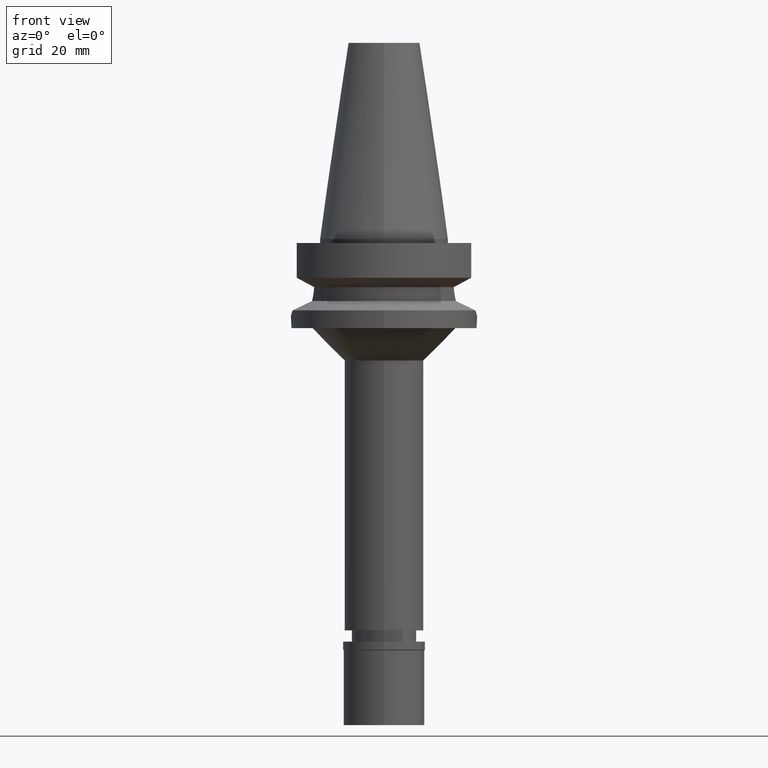
[diagram: clean part render]
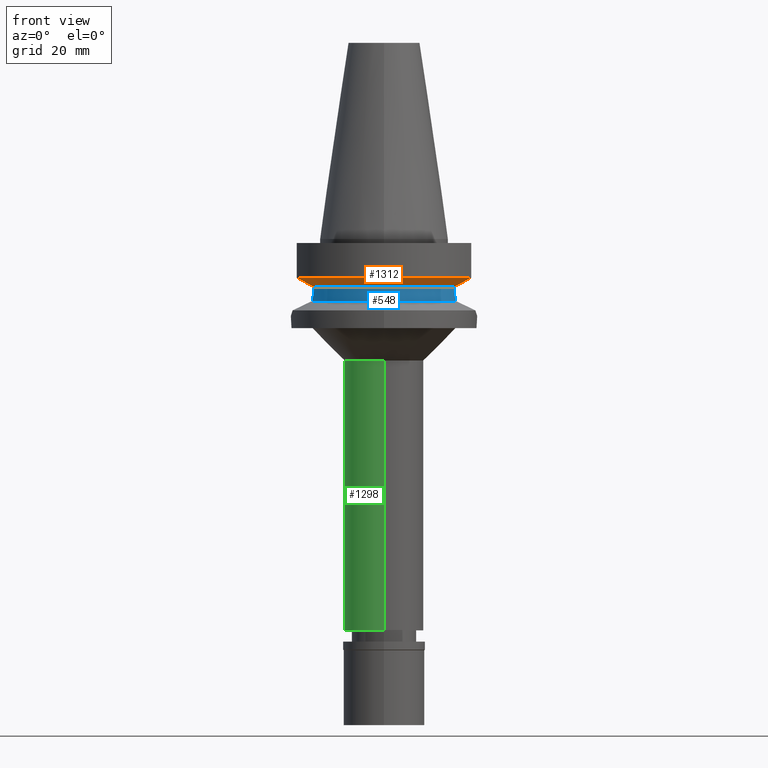
[diagram: same view with three faces highlighted in distinct colors, each labeled with its STEP entity id]
A machine part, front view with three faces highlighted in distinct colors.
Their STEP definitions:

[orange] entity #1312 — the highlighted conical surface has half-angle 60 deg.
#50 = EDGE_CURVE ( 'NONE', #2280, #2189, #983, .T. ) ;
#117 = B_SPLINE_CURVE_WITH_KNOTS ( 'NONE', 3,
 ( #2998, #1815, #2776, #1625 ),
 .UNSPECIFIED., .F., .F.,
 ( 4, 4 ),
 ( 0.0000000000000000000, 1.000000000000000000 ),
 .UNSPECIFIED. ) ;
#128 = AXIS2_PLACEMENT_3D ( 'NONE', #1120, #1073, #2082 ) ;
#224 = CARTESIAN_POINT ( 'NONE',  ( 19.78176446227738339, -8.050001299918164932, -10.51717305795229151 ) ) ;
#319 = VERTEX_POINT ( 'NONE', #3050 ) ;
#349 = EDGE_CURVE ( 'NONE', #2189, #319, #2213, .T. ) ;
#366 = AXIS2_PLACEMENT_3D ( 'NONE', #2172, #709, #2872 ) ;
#375 = FACE_OUTER_BOUND ( 'NONE', #1542, .T. ) ;
#697 = VERTEX_POINT ( 'NONE', #2665 ) ;
#709 = DIRECTION ( 'NONE',  ( 0.0000000000000000000, 0.0000000000000000000, -1.000000000000000000 ) ) ;
#721 = EDGE_CURVE ( 'NONE', #862, #697, #117, .T. ) ;
#770 = CARTESIAN_POINT ( 'NONE',  ( 17.23531135313999840, -7.996501749111999402, -11.87660739352999961 ) ) ;
#783 = CARTESIAN_POINT ( 'NONE',  ( -21.54524325238000060, -8.049999577366000025, -9.567211146628999074 ) ) ;
#824 = CARTESIAN_POINT ( 'NONE',  ( 17.72682660578003322, -8.027186146920309184, -11.61172867019492472 ) ) ;
#862 = VERTEX_POINT ( 'NONE', #783 ) ;
#983 = B_SPLINE_CURVE_WITH_KNOTS ( 'NONE', 3,
 ( #1798, #2973, #824, #2744 ),
 .UNSPECIFIED., .F., .F.,
 ( 4, 4 ),
 ( 0.0000000000000000000, 1.000000000000000000 ),
 .UNSPECIFIED. ) ;
#1021 = DIRECTION ( 'NONE',  ( 0.0000000000000000000, 0.0000000000000000000, 1.000000000000000000 ) ) ;
#1073 = DIRECTION ( 'NONE',  ( 0.0000000000000000000, 0.0000000000000000000, 1.000000000000000000 ) ) ;
#1120 = CARTESIAN_POINT ( 'NONE',  ( 0.0000000000000000000, 1.093341284896999988E-14, -10.72190890808999875 ) ) ;
#1170 = CARTESIAN_POINT ( 'NONE',  ( 21.54524309446999908, -8.050000000002000888, -9.567208369710998639 ) ) ;
#1211 = EDGE_CURVE ( 'NONE', #862, #1222, #2970, .T. ) ;
#1222 = VERTEX_POINT ( 'NONE', #2419 ) ;
#1312 = ADVANCED_FACE ( 'NONE', ( #375 ), #1969, .T. ) ;
#1344 = CARTESIAN_POINT ( 'NONE',  ( 18.96736186693999926, -8.050001277873001015, -10.94999977540000025 ) ) ;
#1507 = DIRECTION ( 'NONE',  ( 0.0000000000000000000, -1.000000000000000000, 0.0000000000000000000 ) ) ;
#1542 = EDGE_LOOP ( 'NONE', ( #2110, #2763, #2507, #2714, #2401, #1588 ) ) ;
#1560 = CARTESIAN_POINT ( 'NONE',  ( -18.96738966519999892, -8.049994318072998922, -10.95000099924999937 ) ) ;
#1567 = B_SPLINE_CURVE_WITH_KNOTS ( 'NONE', 3,
 ( #2162, #224, #2865, #1170 ),
 .UNSPECIFIED., .F., .F.,
 ( 4, 4 ),
 ( 0.0000000000000000000, 1.000000000000000000 ),
 .UNSPECIFIED. ) ;
#1588 = ORIENTED_EDGE ( 'NONE', *, *, #721, .T. ) ;
#1625 = CARTESIAN_POINT ( 'NONE',  ( -18.96738966519999892, -8.049994318072998922, -10.95000099924999937 ) ) ;
#1626 = AXIS2_PLACEMENT_3D ( 'NONE', #2941, #1021, #1507 ) ;
#1785 = EDGE_CURVE ( 'NONE', #2280, #1222, #1567, .T. ) ;
#1798 = CARTESIAN_POINT ( 'NONE',  ( 18.96736186693999926, -8.050001277873001015, -10.94999977540000025 ) ) ;
#1815 = CARTESIAN_POINT ( 'NONE',  ( -20.64098922449849383, -8.049999155425599184, -10.05625859809538980 ) ) ;
#1969 = CONICAL_SURFACE ( 'NONE', #128, 21.00000000000000000, 1.047197551196400456 ) ;
#1993 = B_SPLINE_CURVE_WITH_KNOTS ( 'NONE', 3,
 ( #2759, #2514, #2966, #1560 ),
 .UNSPECIFIED., .F., .F.,
 ( 4, 4 ),
 ( 0.0000000000000000000, 1.000000000000000000 ),
 .UNSPECIFIED. ) ;
#2082 = DIRECTION ( 'NONE',  ( 0.0000000000000000000, 1.000000000000000000, 0.0000000000000000000 ) ) ;
#2110 = ORIENTED_EDGE ( 'NONE', *, *, #2707, .F. ) ;
#2162 = CARTESIAN_POINT ( 'NONE',  ( 18.96736186693999926, -8.050001277873001015, -10.94999977540000025 ) ) ;
#2172 = CARTESIAN_POINT ( 'NONE',  ( 0.0000000000000000000, 1.093341284896999988E-14, -11.87660944646999894 ) ) ;
#2189 = VERTEX_POINT ( 'NONE', #770 ) ;
#2213 = CIRCLE ( 'NONE', #366, 19.00000000000000000 ) ;
#2280 = VERTEX_POINT ( 'NONE', #1344 ) ;
#2401 = ORIENTED_EDGE ( 'NONE', *, *, #1211, .F. ) ;
#2419 = CARTESIAN_POINT ( 'NONE',  ( 21.54524309446999908, -8.050000000002000888, -9.567208369710998639 ) ) ;
#2507 = ORIENTED_EDGE ( 'NONE', *, *, #50, .F. ) ;
#2514 = CARTESIAN_POINT ( 'NONE',  ( -17.72598984664393029, -8.027133614840121112, -11.61218199031924669 ) ) ;
#2665 = CARTESIAN_POINT ( 'NONE',  ( -18.96738966519999892, -8.049994318072998922, -10.95000099924999937 ) ) ;
#2707 = EDGE_CURVE ( 'NONE', #319, #697, #1993, .T. ) ;
#2714 = ORIENTED_EDGE ( 'NONE', *, *, #1785, .T. ) ;
#2744 = CARTESIAN_POINT ( 'NONE',  ( 17.23531135313999840, -7.996501749111999402, -11.87660739352999961 ) ) ;
#2759 = CARTESIAN_POINT ( 'NONE',  ( -17.23531622871000124, -7.996491146968002006, -11.87660607765999998 ) ) ;
#2763 = ORIENTED_EDGE ( 'NONE', *, *, #349, .F. ) ;
#2776 = CARTESIAN_POINT ( 'NONE',  ( -19.78174442233868291, -8.049991903459016385, -10.51718567402809690 ) ) ;
#2865 = CARTESIAN_POINT ( 'NONE',  ( 20.64101735201231591, -8.050004185258069711, -10.05624233374762966 ) ) ;
#2872 = DIRECTION ( 'NONE',  ( 0.0000000000000000000, -1.000000000000000000, 0.0000000000000000000 ) ) ;
#2941 = CARTESIAN_POINT ( 'NONE',  ( 0.0000000000000000000, 1.093341284896999988E-14, -9.567208369710998639 ) ) ;
#2966 = CARTESIAN_POINT ( 'NONE',  ( -18.30334765880726167, -8.049999956192328554, -11.30291652904217514 ) ) ;
#2970 = CIRCLE ( 'NONE', #1626, 23.00000000000000000 ) ;
#2973 = CARTESIAN_POINT ( 'NONE',  ( 18.30417677704669899, -8.050000009833846448, -11.30245973841521945 ) ) ;
#2998 = CARTESIAN_POINT ( 'NONE',  ( -21.54524325238000060, -8.049999577366000025, -9.567211146628999074 ) ) ;
#3050 = CARTESIAN_POINT ( 'NONE',  ( -17.23531622871000124, -7.996491146968002006, -11.87660607765999998 ) ) ;

[blue] entity #548 — the highlighted cylindrical surface (partial cylindrical patch) has radius 19 mm, axis along (0, 0, -1).
#41 = CARTESIAN_POINT ( 'NONE',  ( 0.0000000000000000000, 1.915592523225999865E-14, 56.41999999999999460 ) ) ;
#145 = CARTESIAN_POINT ( 'NONE',  ( 17.25079842015505704, -7.963112712671637006, -12.16467410600589893 ) ) ;
#170 = CARTESIAN_POINT ( 'NONE',  ( -17.47454530901779179, -7.459745912388544120, -13.97656768012266326 ) ) ;
#179 = CARTESIAN_POINT ( 'NONE',  ( 17.40050649189846510, -7.630573670530728769, -13.51506551006701429 ) ) ;
#237 = ORIENTED_EDGE ( 'NONE', *, *, #349, .T. ) ;
#319 = VERTEX_POINT ( 'NONE', #3050 ) ;
#349 = EDGE_CURVE ( 'NONE', #2189, #319, #2213, .T. ) ;
#366 = AXIS2_PLACEMENT_3D ( 'NONE', #2172, #709, #2872 ) ;
#397 = DIRECTION ( 'NONE',  ( 0.0000000000000000000, -1.000000000000000000, 0.0000000000000000000 ) ) ;
#428 = CARTESIAN_POINT ( 'NONE',  ( 17.41740877569946377, -7.591869531162124041, -13.62695997435001338 ) ) ;
#465 = CARTESIAN_POINT ( 'NONE',  ( -17.42912000654915516, -7.564956682215965955, -13.70217383710685688 ) ) ;
#466 = DIRECTION ( 'NONE',  ( 0.0000000000000000000, 0.0000000000000000000, -1.000000000000000000 ) ) ;
#548 = ADVANCED_FACE ( 'NONE', ( #2184 ), #1403, .T. ) ;
#642 = VERTEX_POINT ( 'NONE', #2199 ) ;
#662 = CARTESIAN_POINT ( 'NONE',  ( 17.32020050329957783, -7.811458914743172777, -12.90105448524576204 ) ) ;
#709 = DIRECTION ( 'NONE',  ( 0.0000000000000000000, 0.0000000000000000000, -1.000000000000000000 ) ) ;
#770 = CARTESIAN_POINT ( 'NONE',  ( 17.23531135313999840, -7.996501749111999402, -11.87660739352999961 ) ) ;
#779 = ORIENTED_EDGE ( 'NONE', *, *, #1607, .F. ) ;
#861 = CARTESIAN_POINT ( 'NONE',  ( 17.61323061601331474, -7.137107428168432577, -14.73815501054285981 ) ) ;
#880 = CARTESIAN_POINT ( 'NONE',  ( -17.51073134979980495, -7.374835522280835498, -14.18047752172160081 ) ) ;
#887 = CARTESIAN_POINT ( 'NONE',  ( 17.23531135313999840, -7.996501749111999402, -11.87660739352999961 ) ) ;
#908 = CARTESIAN_POINT ( 'NONE',  ( -17.32791029621212786, -7.797415213321160721, -13.04847605008973233 ) ) ;
#982 = DIRECTION ( 'NONE',  ( 0.0000000000000000000, -1.000000000000000000, 0.0000000000000000000 ) ) ;
#1110 = CARTESIAN_POINT ( 'NONE',  ( 17.41455302328521171, -7.598419946123429192, -13.60830999035355227 ) ) ;
#1181 = B_SPLINE_CURVE_WITH_KNOTS ( 'NONE', 3,
 ( #887, #145, #1557, #662, #1332, #1366, #2561, #179, #2739, #1110, #428, #2058, #3015, #861, #2257 ),
 .UNSPECIFIED., .F., .F.,
 ( 4, 2, 2, 1, 1, 1, 2, 2, 4 ),
 ( 0.0000000000000000000, 0.2500000000000031641, 0.3750000000000040523, 0.4375000000000045519, 0.4687500000000046074, 0.4843750000000047740, 0.4921875000000041633, 0.5000000000000035527, 1.000000000000000000 ),
 .UNSPECIFIED. ) ;
#1234 = ORIENTED_EDGE ( 'NONE', *, *, #1681, .F. ) ;
#1332 = CARTESIAN_POINT ( 'NONE',  ( 17.33753291668424623, -7.772931439716159296, -13.04953900761626429 ) ) ;
#1366 = CARTESIAN_POINT ( 'NONE',  ( 17.36640820072439340, -7.707990843834751082, -13.27279658044289690 ) ) ;
#1386 = CARTESIAN_POINT ( 'NONE',  ( 0.0000000000000000000, 1.022848384030000006E-14, -15.32339055352999857 ) ) ;
#1403 = CYLINDRICAL_SURFACE ( 'NONE', #2015, 19.00000000000000000 ) ;
#1421 = CARTESIAN_POINT ( 'NONE',  ( -17.42272207964819231, -7.579666851679187189, -13.66131438038960866 ) ) ;
#1557 = CARTESIAN_POINT ( 'NONE',  ( 17.27395659107183334, -7.913383733943885723, -12.45760532097264317 ) ) ;
#1607 = EDGE_CURVE ( 'NONE', #2654, #319, #2566, .T. ) ;
#1654 = CARTESIAN_POINT ( 'NONE',  ( -17.75736593456000278, -6.758398853743999624, -15.32339055352999857 ) ) ;
#1681 = EDGE_CURVE ( 'NONE', #2189, #642, #1181, .T. ) ;
#1872 = DIRECTION ( 'NONE',  ( 0.0000000000000000000, 0.0000000000000000000, 1.000000000000000000 ) ) ;
#1933 = CARTESIAN_POINT ( 'NONE',  ( -17.75736593456000278, -6.758398853743999624, -15.32339055352999857 ) ) ;
#2015 = AXIS2_PLACEMENT_3D ( 'NONE', #41, #466, #982 ) ;
#2058 = CARTESIAN_POINT ( 'NONE',  ( 17.41902787752291815, -7.588152995022401370, -13.63747255037764283 ) ) ;
#2106 = CARTESIAN_POINT ( 'NONE',  ( -17.68527682807014401, -6.947809492486509697, -15.03068569946019117 ) ) ;
#2172 = CARTESIAN_POINT ( 'NONE',  ( 0.0000000000000000000, 1.093341284896999988E-14, -11.87660944646999894 ) ) ;
#2181 = CARTESIAN_POINT ( 'NONE',  ( -17.26628387109003882, -7.929746129434650292, -12.45262345044538499 ) ) ;
#2184 = FACE_OUTER_BOUND ( 'NONE', #2833, .T. ) ;
#2189 = VERTEX_POINT ( 'NONE', #770 ) ;
#2199 = CARTESIAN_POINT ( 'NONE',  ( 17.75736593456000278, -6.758398853743999624, -15.32339055352999857 ) ) ;
#2213 = CIRCLE ( 'NONE', #366, 19.00000000000000000 ) ;
#2257 = CARTESIAN_POINT ( 'NONE',  ( 17.75736593456000278, -6.758398853743999624, -15.32339055352999857 ) ) ;
#2273 = ORIENTED_EDGE ( 'NONE', *, *, #2462, .T. ) ;
#2407 = CARTESIAN_POINT ( 'NONE',  ( -17.23531622871000124, -7.996491146968002006, -11.87660607765999998 ) ) ;
#2462 = EDGE_CURVE ( 'NONE', #2654, #642, #2546, .T. ) ;
#2492 = AXIS2_PLACEMENT_3D ( 'NONE', #1386, #1872, #397 ) ;
#2546 = CIRCLE ( 'NONE', #2492, 19.00000000000000000 ) ;
#2561 = CARTESIAN_POINT ( 'NONE',  ( 17.38156500873525800, -7.673733568343076072, -13.38455737039680216 ) ) ;
#2566 = B_SPLINE_CURVE_WITH_KNOTS ( 'NONE', 3,
 ( #1654, #2106, #2839, #3049, #880, #170, #2601, #2778, #465, #2812, #1421, #3065, #908, #2181, #2407 ),
 .UNSPECIFIED., .F., .F.,
 ( 4, 2, 2, 1, 1, 1, 2, 2, 4 ),
 ( 0.0000000000000000000, 0.2499999999999950040, 0.3749999999999925060, 0.4374999999999908962, 0.4687499999999907296, 0.4843749999999916178, 0.4921874999999918399, 0.4999999999999920064, 1.000000000000000000 ),
 .UNSPECIFIED. ) ;
#2601 = CARTESIAN_POINT ( 'NONE',  ( -17.45719732150535464, -7.500152050040172824, -13.87559267627762871 ) ) ;
#2654 = VERTEX_POINT ( 'NONE', #1933 ) ;
#2739 = CARTESIAN_POINT ( 'NONE',  ( 17.41029186860103906, -7.608187570459095994, -13.58033536419023335 ) ) ;
#2778 = CARTESIAN_POINT ( 'NONE',  ( -17.43826181027829847, -7.543903599324784714, -13.75965695397718669 ) ) ;
#2812 = CARTESIAN_POINT ( 'NONE',  ( -17.42527193749759462, -7.573805764803124951, -13.67764394465016764 ) ) ;
#2833 = EDGE_LOOP ( 'NONE', ( #779, #2273, #1234, #237 ) ) ;
#2839 = CARTESIAN_POINT ( 'NONE',  ( -17.62113473895157156, -7.108360423145237306, -14.74096325193282020 ) ) ;
#2872 = DIRECTION ( 'NONE',  ( 0.0000000000000000000, -1.000000000000000000, 0.0000000000000000000 ) ) ;
#3015 = CARTESIAN_POINT ( 'NONE',  ( 17.50087097184362861, -7.400178023009444495, -14.16642114489248527 ) ) ;
#3049 = CARTESIAN_POINT ( 'NONE',  ( -17.53684213133063352, -7.312763963781926613, -14.31903632819873984 ) ) ;
#3050 = CARTESIAN_POINT ( 'NONE',  ( -17.23531622871000124, -7.996491146968002006, -11.87660607765999998 ) ) ;
#3065 = CARTESIAN_POINT ( 'NONE',  ( -17.42163746044911932, -7.582158997729752770, -13.65434146905063173 ) ) ;

[green] entity #1298 — the highlighted cylindrical surface (partial cylindrical patch) has radius 9.75 mm, axis along (0, 0, -1).
#10 = CARTESIAN_POINT ( 'NONE',  ( 0.0000000000000000000, -9.750000000000000000, -96.60000000000000853 ) ) ;
#71 = CIRCLE ( 'NONE', #2414, 9.750000000000000000 ) ;
#183 = CARTESIAN_POINT ( 'NONE',  ( 0.0000000000000000000, -9.750000000000000000, -30.00000000000000000 ) ) ;
#217 = LINE ( 'NONE', #183, #1167 ) ;
#306 = VERTEX_POINT ( 'NONE', #10 ) ;
#510 = ORIENTED_EDGE ( 'NONE', *, *, #2467, .T. ) ;
#647 = DIRECTION ( 'NONE',  ( 0.0000000000000000000, 0.0000000000000000000, 1.000000000000000000 ) ) ;
#752 = CIRCLE ( 'NONE', #3012, 9.750000000000000000 ) ;
#826 = DIRECTION ( 'NONE',  ( 0.0000000000000000000, 0.0000000000000000000, -1.000000000000000000 ) ) ;
#873 = CARTESIAN_POINT ( 'NONE',  ( 0.0000000000000000000, 1.915592523225999865E-14, 56.41999999999999460 ) ) ;
#889 = DIRECTION ( 'NONE',  ( 0.0000000000000000000, 1.000000000000000000, 0.0000000000000000000 ) ) ;
#917 = VERTEX_POINT ( 'NONE', #1288 ) ;
#1056 = CARTESIAN_POINT ( 'NONE',  ( 0.0000000000000000000, 0.0000000000000000000, -30.00000000000000000 ) ) ;
#1167 = VECTOR ( 'NONE', #2088, 1000.000000000000000 ) ;
#1216 = LINE ( 'NONE', #2890, #2950 ) ;
#1223 = CARTESIAN_POINT ( 'NONE',  ( 0.0000000000000000000, 9.750000000000000000, -30.00000000000000000 ) ) ;
#1288 = CARTESIAN_POINT ( 'NONE',  ( 0.0000000000000000000, 9.750000000000000000, -96.60000000000000853 ) ) ;
#1298 = ADVANCED_FACE ( 'NONE', ( #2506 ), #1314, .T. ) ;
#1311 = ORIENTED_EDGE ( 'NONE', *, *, #1902, .T. ) ;
#1314 = CYLINDRICAL_SURFACE ( 'NONE', #2770, 9.750000000000000000 ) ;
#1341 = DIRECTION ( 'NONE',  ( 0.0000000000000000000, -1.000000000000000000, 0.0000000000000000000 ) ) ;
#1361 = DIRECTION ( 'NONE',  ( 0.0000000000000000000, 0.0000000000000000000, -1.000000000000000000 ) ) ;
#1375 = EDGE_CURVE ( 'NONE', #2428, #1523, #71, .T. ) ;
#1415 = CARTESIAN_POINT ( 'NONE',  ( 0.0000000000000000000, 1.915592523225999865E-14, -96.60000000000000853 ) ) ;
#1523 = VERTEX_POINT ( 'NONE', #1223 ) ;
#1529 = ORIENTED_EDGE ( 'NONE', *, *, #1548, .F. ) ;
#1548 = EDGE_CURVE ( 'NONE', #2428, #306, #217, .T. ) ;
#1902 = EDGE_CURVE ( 'NONE', #1523, #917, #1216, .T. ) ;
#2007 = EDGE_LOOP ( 'NONE', ( #510, #1529, #3059, #1311 ) ) ;
#2088 = DIRECTION ( 'NONE',  ( 0.0000000000000000000, 0.0000000000000000000, -1.000000000000000000 ) ) ;
#2282 = DIRECTION ( 'NONE',  ( 0.0000000000000000000, -1.000000000000000000, 0.0000000000000000000 ) ) ;
#2347 = CARTESIAN_POINT ( 'NONE',  ( 0.0000000000000000000, -9.750000000000000000, -30.00000000000000000 ) ) ;
#2414 = AXIS2_PLACEMENT_3D ( 'NONE', #1056, #826, #2282 ) ;
#2428 = VERTEX_POINT ( 'NONE', #2347 ) ;
#2467 = EDGE_CURVE ( 'NONE', #917, #306, #752, .T. ) ;
#2506 = FACE_OUTER_BOUND ( 'NONE', #2007, .T. ) ;
#2770 = AXIS2_PLACEMENT_3D ( 'NONE', #873, #1361, #1341 ) ;
#2890 = CARTESIAN_POINT ( 'NONE',  ( 0.0000000000000000000, 9.750000000000000000, -30.00000000000000000 ) ) ;
#2950 = VECTOR ( 'NONE', #3072, 1000.000000000000000 ) ;
#3012 = AXIS2_PLACEMENT_3D ( 'NONE', #1415, #647, #889 ) ;
#3059 = ORIENTED_EDGE ( 'NONE', *, *, #1375, .T. ) ;
#3072 = DIRECTION ( 'NONE',  ( 0.0000000000000000000, 0.0000000000000000000, -1.000000000000000000 ) ) ;